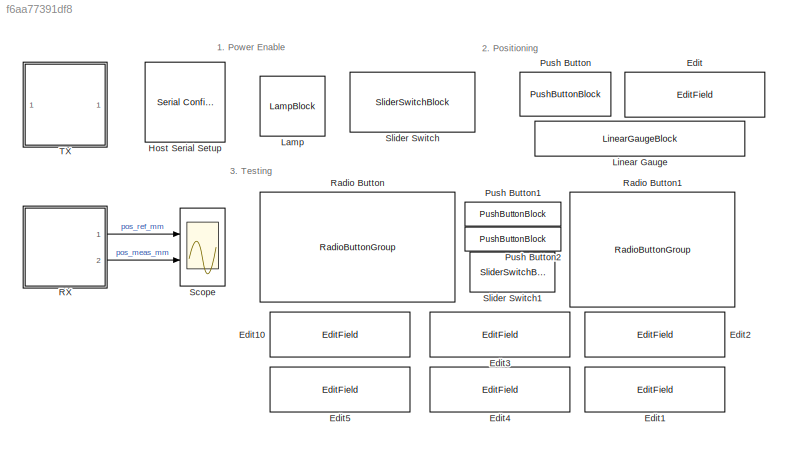
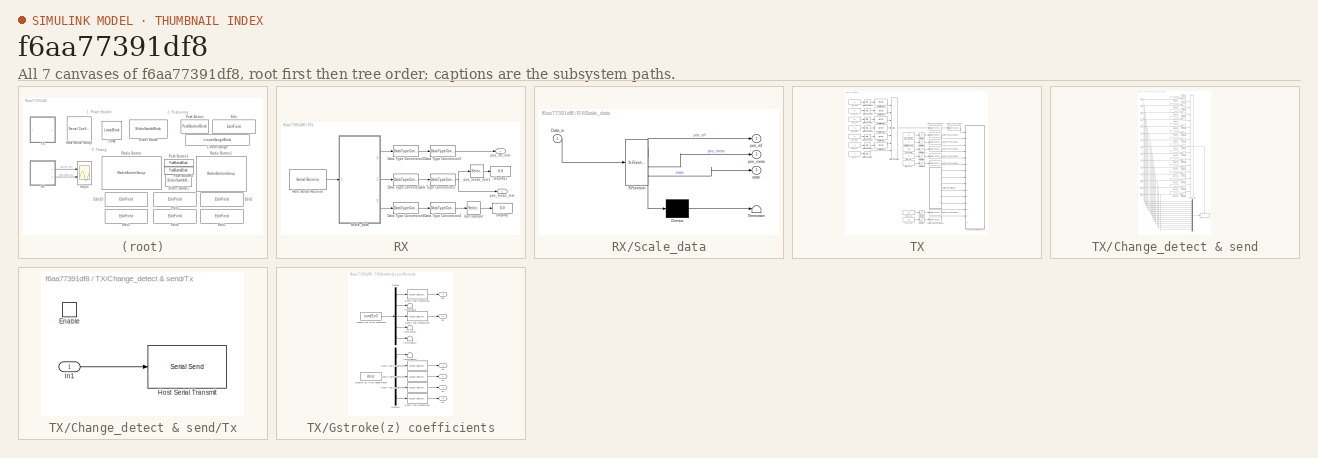
[diagram: thumbnail index - all 7 canvases of the model, root first then tree order]
MODEL slx_f6aa77391df8
KIND model
CONFIG AbsTol = auto
CONFIG EnableMultiTasking = off
CONFIG FixedStep = auto
CONFIG InitFcn = params_NVH;
CONFIG MaxStep = auto
CONFIG MinStep = auto
CONFIG RelTol = 1e-3
CONFIG SampleTimeConstraint = Unconstrained
CONFIG SolverName = VariableStepAuto
CONFIG StartTime = 0.0
CONFIG StopTime = Inf
BLOCK [EditField] Edit
  Alignment = Center
  LabelPosition = Bottom
  ShowInitialText = on
BLOCK [EditField] Edit1
  Alignment = Center
  LabelPosition = Bottom
  ShowInitialText = on
BLOCK [EditField] Edit10
  Alignment = Center
  LabelPosition = Bottom
  ShowInitialText = on
BLOCK [EditField] Edit2
  Alignment = Center
  LabelPosition = Bottom
  ShowInitialText = on
BLOCK [EditField] Edit3
  Alignment = Center
  LabelPosition = Bottom
  ShowInitialText = on
BLOCK [EditField] Edit4
  Alignment = Center
  LabelPosition = Bottom
  ShowInitialText = on
BLOCK [EditField] Edit5
  Alignment = Center
  LabelPosition = Bottom
  ShowInitialText = on
BLOCK [Reference] Host Serial Setup  REF=instrumentseriallib/Serial Configuration
  Ports = []
  Priority = -99
  SourceBlock = instrumentseriallib/Serial Configuration
  SourceProductBaseCode = OT,IC,MT
  SourceType = system.SerialConfiguration
BLOCK [LampBlock] Lamp
  LabelPosition = Hide
BLOCK [LinearGaugeBlock] Linear Gauge
  ScaleMax = 25
  ScaleMin = -25
  TickInterval = 5
BLOCK [PushButtonBlock] Push Button
  ButtonText = Position Enable
  OffValue = 0.000000
BLOCK [PushButtonBlock] Push Button1
  ButtonText = Test Start
  OffValue = 0.000000
BLOCK [PushButtonBlock] Push Button2
  ButtonText = Test Stop
  OffValue = 0.000000
BLOCK [SubSystem] RX
  Ports = [0, 2]
  RequestExecContextInheritance = off
BLOCK [DataTypeConversion] RX/Data Type Conversion1
  ConvertRealWorld = Stored Integer (SI)
  OutDataTypeStr = fixdt(1,16,15-ceil(log2(45)))
  RndMeth = Simplest
  SaturateOnIntegerOverflow = off
BLOCK [DataTypeConversion] RX/Data Type Conversion2
  OutDataTypeStr = double
  RndMeth = Simplest
  SaturateOnIntegerOverflow = off
BLOCK [DataTypeConversion] RX/Data Type Conversion3
  OutDataTypeStr = double
  RndMeth = Simplest
  SaturateOnIntegerOverflow = off
BLOCK [DataTypeConversion] RX/Data Type Conversion4
  OutDataTypeStr = double
  RndMeth = Simplest
  SaturateOnIntegerOverflow = off
BLOCK [DataTypeConversion] RX/Data Type Conversion5
  ConvertRealWorld = Stored Integer (SI)
  OutDataTypeStr = fixdt(1,16,15-ceil(log2(45)))
  RndMeth = Simplest
  SaturateOnIntegerOverflow = off
BLOCK [DataTypeConversion] RX/Data Type Conversion6
  ConvertRealWorld = Stored Integer (SI)
  OutDataTypeStr = fixdt(1,16,15-ceil(log2(45)))
  RndMeth = Simplest
  SaturateOnIntegerOverflow = off
BLOCK [Display] RX/Display
  Decimation = 1
  Ports = [1]
BLOCK [Display] RX/Display1
  Decimation = 1
  Ports = [1]
BLOCK [Reference] RX/Host Serial Receive  REF=instrumentseriallib/Serial Receive
  Ports = [0, 1]
  SourceBlock = instrumentseriallib/Serial Receive
  SourceProductBaseCode = OT,IC,MT
  SourceType = system.SerialReceive
BLOCK [SubSystem] RX/Scale_data
  ErrorFcn = Stateflow.Translate.translate
  PermitHierarchicalResolution = ExplicitOnly
  Ports = [1, 3]
  RequestExecContextInheritance = off
  SFBlockType = MATLAB Function
  TreatAsAtomicUnit = on
BLOCK [Demux] RX/Scale_data/ Demux 
  Outputs = 1
  Ports = [1, 1]
BLOCK [S-Function] RX/Scale_data/ SFunction 
  EnableBusSupport = on
  FunctionName = sf_sfun
  PortCounts = [1 4]
  Ports = [1, 4]
  SFcnIsStateOwnerBlock = off
  SFunctionDeploymentMode = off
  Tag = Stateflow S-Function 2
BLOCK [Terminator] RX/Scale_data/ Terminator 
BLOCK [Inport] RX/Scale_data/Data_in
BLOCK [Outport] RX/Scale_data/pos_meas
  Port = 2
BLOCK [Outport] RX/Scale_data/pos_ref
BLOCK [Outport] RX/Scale_data/state
  Port = 3
BLOCK [Selector] RX/last sample
  IndexOptions = Index vector (dialog),Starting index (dialog)
  Indices = 1000,1
  InputPortWidth = 3
  NumberOfDimensions = 2
  OutputSizes = 1,1
  Ports = [1, 1]
BLOCK [Outport] RX/pos_meas_mm
  Port = 2
BLOCK [Selector] RX/pos_meas_mm1
  IndexOptions = Index vector (dialog),Starting index (dialog)
  Indices = 1000,1
  InputPortWidth = 3
  NumberOfDimensions = 2
  OutputSizes = 1,1
  Ports = [1, 1]
BLOCK [Outport] RX/pos_ref_mm
BLOCK [RadioButtonGroup] Radio Button
  ButtonGroupName = Test Type
  LabelPosition = Hide
  SelectedLabel = Time history (Renault NVH profile)
BLOCK [RadioButtonGroup] Radio Button1
  ButtonGroupName = ISO 8608 random profile class
  LabelPosition = Hide
  SelectedLabel = C
BLOCK [Scope] Scope
  Floating = off
  NumInputPorts = 2
  Ports = [2]
  ScopeSpecificationString = Simulink.scopes.TimeScopeBlockCfg('CurrentConfiguration', extmgr.ConfigurationSet(extmgr.Configuration('Core','General UI',true,'FigureColor',[1 1 1]),extmgr.Configuration('Core','Source UI',true),extmgr.Configuration('Sources','WiredSimulink',true,'DataLogging',true,'DataLoggingSaveFormat','Structure'),extmgr.Configuration('Visuals','Time Domain',true,'InputProcessing','FrameProcessing','Serializ...<+1891ch>
BLOCK [SliderSwitchBlock] Slider Switch
  LabelPosition = Hide
BLOCK [SliderSwitchBlock] Slider Switch1
  LabelPosition = Hide
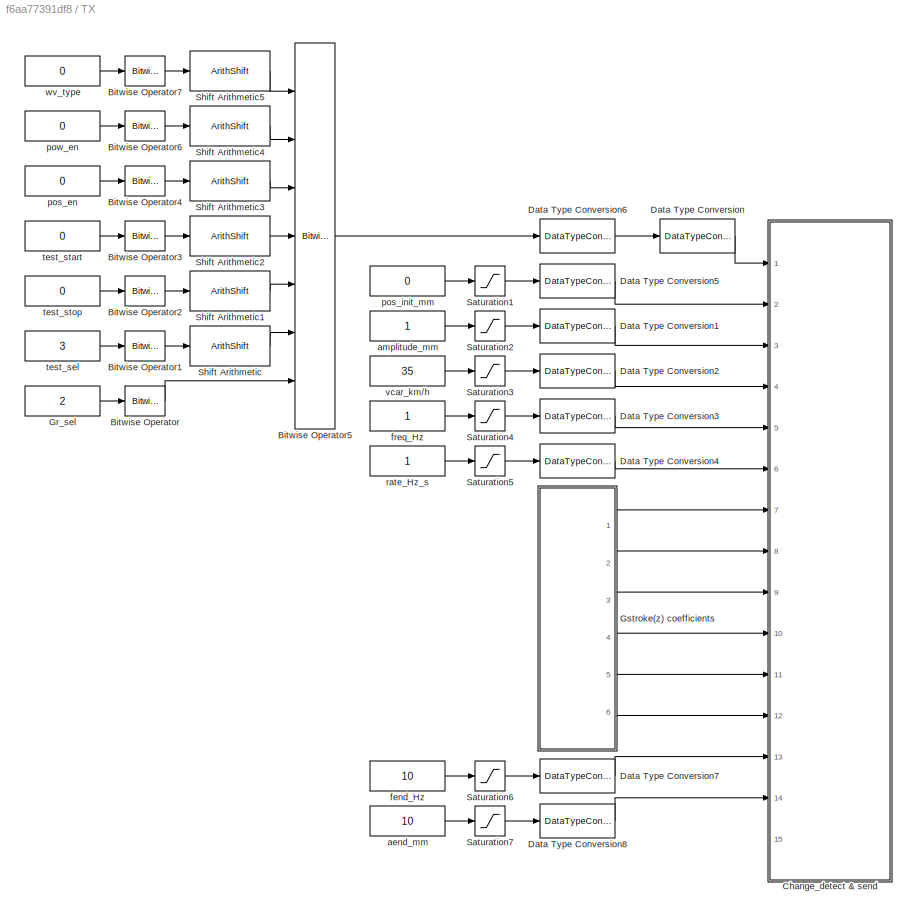
BLOCK [SubSystem] TX
  Ports = []
  RequestExecContextInheritance = off
BLOCK [Reference] TX/Bitwise Operator  REF=simulink/Logic and Bit
Operations/Bitwise
Operator
  Ports = [1, 1]
  SourceBlock = simulink/Logic and Bit\nOperations/Bitwise\nOperator
  SourceProductBaseCode = SL
  SourceType = Bitwise Operator
BLOCK [Reference] TX/Bitwise Operator1  REF=simulink/Logic and Bit
Operations/Bitwise
Operator
  Ports = [1, 1]
  SourceBlock = simulink/Logic and Bit\nOperations/Bitwise\nOperator
  SourceProductBaseCode = SL
  SourceType = Bitwise Operator
BLOCK [Reference] TX/Bitwise Operator2  REF=simulink/Logic and Bit
Operations/Bitwise
Operator
  Ports = [1, 1]
  SourceBlock = simulink/Logic and Bit\nOperations/Bitwise\nOperator
  SourceProductBaseCode = SL
  SourceType = Bitwise Operator
BLOCK [Reference] TX/Bitwise Operator3  REF=simulink/Logic and Bit
Operations/Bitwise
Operator
  Ports = [1, 1]
  SourceBlock = simulink/Logic and Bit\nOperations/Bitwise\nOperator
  SourceProductBaseCode = SL
  SourceType = Bitwise Operator
BLOCK [Reference] TX/Bitwise Operator4  REF=simulink/Logic and Bit
Operations/Bitwise
Operator
  Ports = [1, 1]
  SourceBlock = simulink/Logic and Bit\nOperations/Bitwise\nOperator
  SourceProductBaseCode = SL
  SourceType = Bitwise Operator
BLOCK [Reference] TX/Bitwise Operator5  REF=simulink/Logic and Bit
Operations/Bitwise
Operator
  Ports = [7, 1]
  SourceBlock = simulink/Logic and Bit\nOperations/Bitwise\nOperator
  SourceProductBaseCode = SL
  SourceType = Bitwise Operator
BLOCK [Reference] TX/Bitwise Operator6  REF=simulink/Logic and Bit
Operations/Bitwise
Operator
  Ports = [1, 1]
  SourceBlock = simulink/Logic and Bit\nOperations/Bitwise\nOperator
  SourceProductBaseCode = SL
  SourceType = Bitwise Operator
BLOCK [Reference] TX/Bitwise Operator7  REF=simulink/Logic and Bit
Operations/Bitwise
Operator
  Ports = [1, 1]
  SourceBlock = simulink/Logic and Bit\nOperations/Bitwise\nOperator
  SourceProductBaseCode = SL
  SourceType = Bitwise Operator
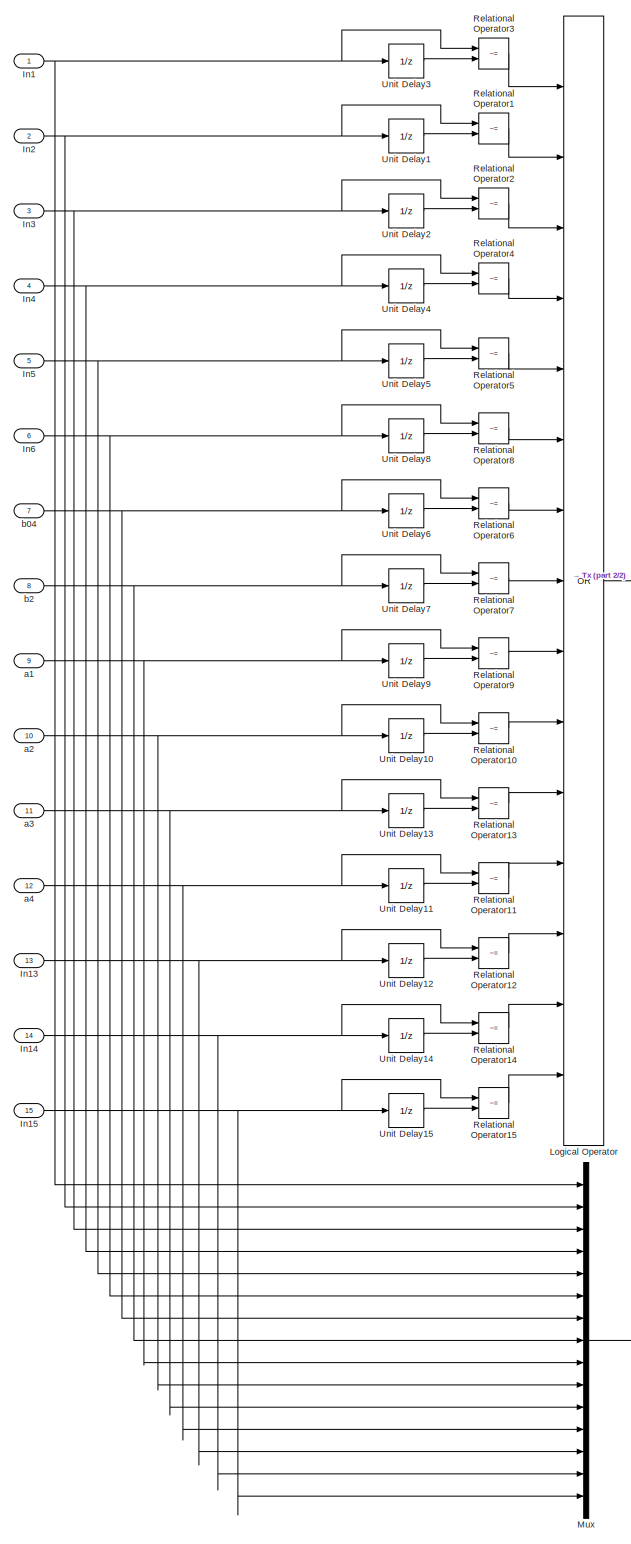
[diagram: TX/Change_detect & send - part 1/2, most of the canvas]
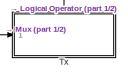
[diagram: TX/Change_detect & send - part 2/2, bottom right region]
BLOCK [SubSystem] TX/Change_detect & send
  Ports = [15]
  RequestExecContextInheritance = off
BLOCK [Inport] TX/Change_detect & send/In1
BLOCK [Inport] TX/Change_detect & send/In13
  Port = 13
BLOCK [Inport] TX/Change_detect & send/In14
  Port = 14
BLOCK [Inport] TX/Change_detect & send/In15
  Port = 15
BLOCK [Inport] TX/Change_detect & send/In2
  Port = 2
BLOCK [Inport] TX/Change_detect & send/In3
  Port = 3
BLOCK [Inport] TX/Change_detect & send/In4
  Port = 4
BLOCK [Inport] TX/Change_detect & send/In5
  Port = 5
BLOCK [Inport] TX/Change_detect & send/In6
  Port = 6
BLOCK [Logic] TX/Change_detect & send/Logical Operator
  AllPortsSameDT = off
  Inputs = 15
  Operator = OR
  OutDataTypeStr = boolean
  Ports = [15, 1]
BLOCK [Mux] TX/Change_detect & send/Mux
  DisplayOption = bar
  Inputs = 15
  Ports = [15, 1]
BLOCK [RelationalOperator] TX/Change_detect & send/Relational Operator1
  InputSameDT = off
  Operator = ~=
  OutDataTypeStr = boolean
  Ports = [2, 1]
BLOCK [RelationalOperator] TX/Change_detect & send/Relational Operator10
  InputSameDT = off
  Operator = ~=
  OutDataTypeStr = boolean
  Ports = [2, 1]
BLOCK [RelationalOperator] TX/Change_detect & send/Relational Operator11
  InputSameDT = off
  Operator = ~=
  OutDataTypeStr = boolean
  Ports = [2, 1]
BLOCK [RelationalOperator] TX/Change_detect & send/Relational Operator12
  InputSameDT = off
  Operator = ~=
  OutDataTypeStr = boolean
  Ports = [2, 1]
BLOCK [RelationalOperator] TX/Change_detect & send/Relational Operator13
  InputSameDT = off
  Operator = ~=
  OutDataTypeStr = boolean
  Ports = [2, 1]
BLOCK [RelationalOperator] TX/Change_detect & send/Relational Operator14
  InputSameDT = off
  Operator = ~=
  OutDataTypeStr = boolean
  Ports = [2, 1]
BLOCK [RelationalOperator] TX/Change_detect & send/Relational Operator15
  InputSameDT = off
  Operator = ~=
  OutDataTypeStr = boolean
  Ports = [2, 1]
BLOCK [RelationalOperator] TX/Change_detect & send/Relational Operator2
  InputSameDT = off
  Operator = ~=
  OutDataTypeStr = boolean
  Ports = [2, 1]
BLOCK [RelationalOperator] TX/Change_detect & send/Relational Operator3
  InputSameDT = off
  Operator = ~=
  OutDataTypeStr = boolean
  Ports = [2, 1]
BLOCK [RelationalOperator] TX/Change_detect & send/Relational Operator4
  InputSameDT = off
  Operator = ~=
  OutDataTypeStr = boolean
  Ports = [2, 1]
BLOCK [RelationalOperator] TX/Change_detect & send/Relational Operator5
  InputSameDT = off
  Operator = ~=
  OutDataTypeStr = boolean
  Ports = [2, 1]
BLOCK [RelationalOperator] TX/Change_detect & send/Relational Operator6
  InputSameDT = off
  Operator = ~=
  OutDataTypeStr = boolean
  Ports = [2, 1]
BLOCK [RelationalOperator] TX/Change_detect & send/Relational Operator7
  InputSameDT = off
  Operator = ~=
  OutDataTypeStr = boolean
  Ports = [2, 1]
BLOCK [RelationalOperator] TX/Change_detect & send/Relational Operator8
  InputSameDT = off
  Operator = ~=
  OutDataTypeStr = boolean
  Ports = [2, 1]
BLOCK [RelationalOperator] TX/Change_detect & send/Relational Operator9
  InputSameDT = off
  Operator = ~=
  OutDataTypeStr = boolean
  Ports = [2, 1]
BLOCK [SubSystem] TX/Change_detect & send/Tx
  Ports = [1, 0, 1]
  RequestExecContextInheritance = off
  TreatAsAtomicUnit = on
BLOCK [EnablePort] TX/Change_detect & send/Tx/Enable
  Ports = []
BLOCK [Reference] TX/Change_detect & send/Tx/Host Serial Transmit  REF=instrumentseriallib/Serial Send
  Ports = [1]
  SourceBlock = instrumentseriallib/Serial Send
  SourceProductBaseCode = OT,IC,MT
  SourceType = system.SerialSend
BLOCK [Inport] TX/Change_detect & send/Tx/In1
BLOCK [UnitDelay] TX/Change_detect & send/Unit Delay1
  HasFrameUpgradeWarning = on
  SampleTime = -1
BLOCK [UnitDelay] TX/Change_detect & send/Unit Delay10
  HasFrameUpgradeWarning = on
  SampleTime = -1
BLOCK [UnitDelay] TX/Change_detect & send/Unit Delay11
  HasFrameUpgradeWarning = on
  SampleTime = -1
BLOCK [UnitDelay] TX/Change_detect & send/Unit Delay12
  HasFrameUpgradeWarning = on
  SampleTime = -1
BLOCK [UnitDelay] TX/Change_detect & send/Unit Delay13
  HasFrameUpgradeWarning = on
  SampleTime = -1
BLOCK [UnitDelay] TX/Change_detect & send/Unit Delay14
  HasFrameUpgradeWarning = on
  SampleTime = -1
BLOCK [UnitDelay] TX/Change_detect & send/Unit Delay15
  HasFrameUpgradeWarning = on
  SampleTime = -1
BLOCK [UnitDelay] TX/Change_detect & send/Unit Delay2
  HasFrameUpgradeWarning = on
  SampleTime = -1
BLOCK [UnitDelay] TX/Change_detect & send/Unit Delay3
  HasFrameUpgradeWarning = on
  SampleTime = -1
BLOCK [UnitDelay] TX/Change_detect & send/Unit Delay4
  HasFrameUpgradeWarning = on
  SampleTime = -1
BLOCK [UnitDelay] TX/Change_detect & send/Unit Delay5
  HasFrameUpgradeWarning = on
  SampleTime = -1
BLOCK [UnitDelay] TX/Change_detect & send/Unit Delay6
  HasFrameUpgradeWarning = on
  SampleTime = -1
BLOCK [UnitDelay] TX/Change_detect & send/Unit Delay7
  HasFrameUpgradeWarning = on
  SampleTime = -1
BLOCK [UnitDelay] TX/Change_detect & send/Unit Delay8
  HasFrameUpgradeWarning = on
  SampleTime = -1
BLOCK [UnitDelay] TX/Change_detect & send/Unit Delay9
  HasFrameUpgradeWarning = on
  SampleTime = -1
BLOCK [Inport] TX/Change_detect & send/a1
  Port = 9
BLOCK [Inport] TX/Change_detect & send/a2
  Port = 10
BLOCK [Inport] TX/Change_detect & send/a3
  Port = 11
BLOCK [Inport] TX/Change_detect & send/a4
  Port = 12
BLOCK [Inport] TX/Change_detect & send/b04
  Port = 7
BLOCK [Inport] TX/Change_detect & send/b2
  Port = 8
BLOCK [DataTypeConversion] TX/Data Type Conversion
  ConvertRealWorld = Stored Integer (SI)
  OutDataTypeStr = single
  RndMeth = Floor
  SaturateOnIntegerOverflow = off
BLOCK [DataTypeConversion] TX/Data Type Conversion1
  OutDataTypeStr = single
  RndMeth = Simplest
  SaturateOnIntegerOverflow = off
BLOCK [DataTypeConversion] TX/Data Type Conversion2
  OutDataTypeStr = single
  RndMeth = Simplest
  SaturateOnIntegerOverflow = off
BLOCK [DataTypeConversion] TX/Data Type Conversion3
  OutDataTypeStr = single
  RndMeth = Simplest
  SaturateOnIntegerOverflow = off
BLOCK [DataTypeConversion] TX/Data Type Conversion4
  OutDataTypeStr = single
  RndMeth = Simplest
  SaturateOnIntegerOverflow = off
BLOCK [DataTypeConversion] TX/Data Type Conversion5
  OutDataTypeStr = single
  RndMeth = Simplest
  SaturateOnIntegerOverflow = off
BLOCK [DataTypeConversion] TX/Data Type Conversion6
  OutDataTypeStr = uint32
  RndMeth = Simplest
  SaturateOnIntegerOverflow = off
BLOCK [DataTypeConversion] TX/Data Type Conversion7
  OutDataTypeStr = single
  RndMeth = Simplest
  SaturateOnIntegerOverflow = off
BLOCK [DataTypeConversion] TX/Data Type Conversion8
  OutDataTypeStr = single
  RndMeth = Simplest
  SaturateOnIntegerOverflow = off
BLOCK [Constant] TX/Gr_sel
  OutDataTypeStr = uint32
  SampleTime = 0.01
  Value = 2
  VectorParams1D = off
BLOCK [SubSystem] TX/Gstroke(z) coefficients
  NameLocation = left
  Ports = [0, 6]
  RequestExecContextInheritance = off
BLOCK [DataTypeConversion] TX/Gstroke(z) coefficients/Data Type Conversion1
  OutDataTypeStr = single
  RndMeth = Simplest
  SaturateOnIntegerOverflow = off
BLOCK [DataTypeConversion] TX/Gstroke(z) coefficients/Data Type Conversion2
  OutDataTypeStr = single
  RndMeth = Simplest
  SaturateOnIntegerOverflow = off
BLOCK [DataTypeConversion] TX/Gstroke(z) coefficients/Data Type Conversion3
  OutDataTypeStr = single
  RndMeth = Simplest
  SaturateOnIntegerOverflow = off
BLOCK [DataTypeConversion] TX/Gstroke(z) coefficients/Data Type Conversion4
  OutDataTypeStr = single
  RndMeth = Simplest
  SaturateOnIntegerOverflow = off
BLOCK [DataTypeConversion] TX/Gstroke(z) coefficients/Data Type Conversion5
  OutDataTypeStr = single
  RndMeth = Simplest
  SaturateOnIntegerOverflow = off
BLOCK [DataTypeConversion] TX/Gstroke(z) coefficients/Data Type Conversion6
  OutDataTypeStr = single
  RndMeth = Simplest
  SaturateOnIntegerOverflow = off
BLOCK [Demux] TX/Gstroke(z) coefficients/Demux
  Outputs = 5
  Ports = [1, 5]
BLOCK [Demux] TX/Gstroke(z) coefficients/Demux1
  Outputs = 5
  Ports = [1, 5]
BLOCK [Constant] TX/Gstroke(z) coefficients/Quarter car filter denominator
  OutDataTypeStr = double
  SampleTime = 0.01
  Value = denz
  VectorParams1D = off
BLOCK [Constant] TX/Gstroke(z) coefficients/Quarter car filter numerator
  OutDataTypeStr = double
  SampleTime = 0.01
  Value = numz*1e3
  VectorParams1D = off
BLOCK [Terminator] TX/Gstroke(z) coefficients/Terminator
BLOCK [Terminator] TX/Gstroke(z) coefficients/Terminator1
BLOCK [Terminator] TX/Gstroke(z) coefficients/Terminator2
BLOCK [Terminator] TX/Gstroke(z) coefficients/Terminator3
BLOCK [Outport] TX/Gstroke(z) coefficients/a1
  Port = 3
BLOCK [Outport] TX/Gstroke(z) coefficients/a2
  Port = 4
BLOCK [Outport] TX/Gstroke(z) coefficients/a3
  Port = 5
BLOCK [Outport] TX/Gstroke(z) coefficients/a4
  Port = 6
BLOCK [Outport] TX/Gstroke(z) coefficients/b04
BLOCK [Outport] TX/Gstroke(z) coefficients/b2
  Port = 2
BLOCK [Saturate] TX/Saturation1
  LowerLimit = -20
  UpperLimit = 20
BLOCK [Saturate] TX/Saturation2
  LowerLimit = 0
  UpperLimit = 20
BLOCK [Saturate] TX/Saturation3
  LowerLimit = 10
  UpperLimit = 200
BLOCK [Saturate] TX/Saturation4
  LowerLimit = 0.1
  UpperLimit = 100
BLOCK [Saturate] TX/Saturation5
  LowerLimit = 0.1
  UpperLimit = 10
BLOCK [Saturate] TX/Saturation6
  LowerLimit = 0.1
  UpperLimit = 100
BLOCK [Saturate] TX/Saturation7
  LowerLimit = 0
  UpperLimit = 20
BLOCK [ArithShift] TX/Shift Arithmetic
  BitShiftNumber = -2
  InputPortMap = u0
  Ports = [1, 1]
BLOCK [ArithShift] TX/Shift Arithmetic1
  BitShiftNumber = -4
  InputPortMap = u0
  Ports = [1, 1]
BLOCK [ArithShift] TX/Shift Arithmetic2
  BitShiftNumber = -5
  InputPortMap = u0
  Ports = [1, 1]
BLOCK [ArithShift] TX/Shift Arithmetic3
  BitShiftNumber = -6
  InputPortMap = u0
  Ports = [1, 1]
BLOCK [ArithShift] TX/Shift Arithmetic4
  BitShiftNumber = -7
  InputPortMap = u0
  Ports = [1, 1]
BLOCK [ArithShift] TX/Shift Arithmetic5
  BitShiftNumber = -8
  InputPortMap = u0
  Ports = [1, 1]
BLOCK [Constant] TX/aend_mm
  OutDataTypeStr = single
  SampleTime = 0.01
  Value = 10
  VectorParams1D = off
BLOCK [Constant] TX/amplitude_mm
  OutDataTypeStr = single
  SampleTime = 0.01
  VectorParams1D = off
BLOCK [Constant] TX/fend_Hz
  OutDataTypeStr = single
  SampleTime = 0.01
  Value = 10
  VectorParams1D = off
BLOCK [Constant] TX/freq_Hz
  OutDataTypeStr = single
  SampleTime = 0.01
  VectorParams1D = off
BLOCK [Constant] TX/pos_en
  OutDataTypeStr = uint32
  SampleTime = 0.01
  Value = 0
  VectorParams1D = off
BLOCK [Constant] TX/pos_init_mm
  OutDataTypeStr = single
  SampleTime = 0.01
  Value = 0
  VectorParams1D = off
BLOCK [Constant] TX/pow_en
  OutDataTypeStr = uint32
  SampleTime = 0.01
  Value = 0
  VectorParams1D = off
BLOCK [Constant] TX/rate_Hz_s
  OutDataTypeStr = single
  SampleTime = 0.01
  VectorParams1D = off
BLOCK [Constant] TX/test_sel
  OutDataTypeStr = uint32
  SampleTime = 0.01
  Value = 3
  VectorParams1D = off
BLOCK [Constant] TX/test_start
  OutDataTypeStr = uint32
  SampleTime = 0.01
  Value = 0
  VectorParams1D = off
BLOCK [Constant] TX/test_stop
  OutDataTypeStr = uint32
  SampleTime = 0.01
  Value = 0
  VectorParams1D = off
BLOCK [Constant] TX/vcar_km//h
  OutDataTypeStr = single
  SampleTime = 0.01
  Value = 35
  VectorParams1D = off
BLOCK [Constant] TX/wv_type
  OutDataTypeStr = uint32
  SampleTime = 0.01
  Value = 0
  VectorParams1D = off
ANNOTATION (root): 1. Power Enable
ANNOTATION (root): 2. Positioning
ANNOTATION (root): 3. Testing
LINE RX/Data Type Conversion1:1 -> RX/Data Type Conversion3:1
LINE RX/Data Type Conversion2:1 -> RX/pos_ref_mm:1
NET RX/Data Type Conversion3:1 -> RX/pos_meas_mm1:1, RX/pos_meas_mm:1
LINE RX/Data Type Conversion4:1 -> RX/last sample:1
LINE RX/Data Type Conversion5:1 -> RX/Data Type Conversion2:1
LINE RX/Data Type Conversion6:1 -> RX/Data Type Conversion4:1
LINE RX/Host Serial Receive:1 -> RX/Scale_data:1
LINE RX/Scale_data:1 -> RX/Data Type Conversion5:1
LINE RX/Scale_data:2 -> RX/Data Type Conversion1:1
LINE RX/Scale_data:3 -> RX/Data Type Conversion6:1
LINE RX/last sample:1 -> RX/Display:1
LINE RX/pos_meas_mm1:1 -> RX/Display1:1
LINE RX:1 -> Scope:1
LINE RX:2 -> Scope:2
LINE TX/Bitwise Operator1:1 -> TX/Shift Arithmetic:1
LINE TX/Bitwise Operator2:1 -> TX/Shift Arithmetic1:1
LINE TX/Bitwise Operator3:1 -> TX/Shift Arithmetic2:1
LINE TX/Bitwise Operator4:1 -> TX/Shift Arithmetic3:1
LINE TX/Bitwise Operator5:1 -> TX/Data Type Conversion6:1
LINE TX/Bitwise Operator6:1 -> TX/Shift Arithmetic4:1
LINE TX/Bitwise Operator7:1 -> TX/Shift Arithmetic5:1
LINE TX/Bitwise Operator:1 -> TX/Bitwise Operator5:7
NET TX/Change_detect & send/In13:1 -> TX/Change_detect & send/Mux:13, TX/Change_detect & send/Relational Operator12:1, TX/Change_detect & send/Unit Delay12:1
NET TX/Change_detect & send/In14:1 -> TX/Change_detect & send/Mux:14, TX/Change_detect & send/Relational Operator14:1, TX/Change_detect & send/Unit Delay14:1
NET TX/Change_detect & send/In15:1 -> TX/Change_detect & send/Mux:15, TX/Change_detect & send/Relational Operator15:1, TX/Change_detect & send/Unit Delay15:1
NET TX/Change_detect & send/In1:1 -> TX/Change_detect & send/Mux:1, TX/Change_detect & send/Relational Operator3:1, TX/Change_detect & send/Unit Delay3:1
NET TX/Change_detect & send/In2:1 -> TX/Change_detect & send/Mux:2, TX/Change_detect & send/Relational Operator1:1, TX/Change_detect & send/Unit Delay1:1
NET TX/Change_detect & send/In3:1 -> TX/Change_detect & send/Mux:3, TX/Change_detect & send/Relational Operator2:1, TX/Change_detect & send/Unit Delay2:1
NET TX/Change_detect & send/In4:1 -> TX/Change_detect & send/Mux:4, TX/Change_detect & send/Relational Operator4:1, TX/Change_detect & send/Unit Delay4:1
NET TX/Change_detect & send/In5:1 -> TX/Change_detect & send/Mux:5, TX/Change_detect & send/Relational Operator5:1, TX/Change_detect & send/Unit Delay5:1
NET TX/Change_detect & send/In6:1 -> TX/Change_detect & send/Mux:6, TX/Change_detect & send/Relational Operator8:1, TX/Change_detect & send/Unit Delay8:1
LINE TX/Change_detect & send/Logical Operator:1 -> TX/Change_detect & send/Tx:enable
LINE TX/Change_detect & send/Mux:1 -> TX/Change_detect & send/Tx:1
LINE TX/Change_detect & send/Relational Operator10:1 -> TX/Change_detect & send/Logical Operator:10
LINE TX/Change_detect & send/Relational Operator11:1 -> TX/Change_detect & send/Logical Operator:12
LINE TX/Change_detect & send/Relational Operator12:1 -> TX/Change_detect & send/Logical Operator:13
LINE TX/Change_detect & send/Relational Operator13:1 -> TX/Change_detect & send/Logical Operator:11
LINE TX/Change_detect & send/Relational Operator14:1 -> TX/Change_detect & send/Logical Operator:14
LINE TX/Change_detect & send/Relational Operator15:1 -> TX/Change_detect & send/Logical Operator:15
LINE TX/Change_detect & send/Relational Operator1:1 -> TX/Change_detect & send/Logical Operator:2
LINE TX/Change_detect & send/Relational Operator2:1 -> TX/Change_detect & send/Logical Operator:3
LINE TX/Change_detect & send/Relational Operator3:1 -> TX/Change_detect & send/Logical Operator:1
LINE TX/Change_detect & send/Relational Operator4:1 -> TX/Change_detect & send/Logical Operator:4
LINE TX/Change_detect & send/Relational Operator5:1 -> TX/Change_detect & send/Logical Operator:5
LINE TX/Change_detect & send/Relational Operator6:1 -> TX/Change_detect & send/Logical Operator:7
LINE TX/Change_detect & send/Relational Operator7:1 -> TX/Change_detect & send/Logical Operator:8
LINE TX/Change_detect & send/Relational Operator8:1 -> TX/Change_detect & send/Logical Operator:6
LINE TX/Change_detect & send/Relational Operator9:1 -> TX/Change_detect & send/Logical Operator:9
LINE TX/Change_detect & send/Tx/In1:1 -> TX/Change_detect & send/Tx/Host Serial Transmit:1
LINE TX/Change_detect & send/Unit Delay10:1 -> TX/Change_detect & send/Relational Operator10:2
LINE TX/Change_detect & send/Unit Delay11:1 -> TX/Change_detect & send/Relational Operator11:2
LINE TX/Change_detect & send/Unit Delay12:1 -> TX/Change_detect & send/Relational Operator12:2
LINE TX/Change_detect & send/Unit Delay13:1 -> TX/Change_detect & send/Relational Operator13:2
LINE TX/Change_detect & send/Unit Delay14:1 -> TX/Change_detect & send/Relational Operator14:2
LINE TX/Change_detect & send/Unit Delay15:1 -> TX/Change_detect & send/Relational Operator15:2
LINE TX/Change_detect & send/Unit Delay1:1 -> TX/Change_detect & send/Relational Operator1:2
LINE TX/Change_detect & send/Unit Delay2:1 -> TX/Change_detect & send/Relational Operator2:2
LINE TX/Change_detect & send/Unit Delay3:1 -> TX/Change_detect & send/Relational Operator3:2
LINE TX/Change_detect & send/Unit Delay4:1 -> TX/Change_detect & send/Relational Operator4:2
LINE TX/Change_detect & send/Unit Delay5:1 -> TX/Change_detect & send/Relational Operator5:2
LINE TX/Change_detect & send/Unit Delay6:1 -> TX/Change_detect & send/Relational Operator6:2
LINE TX/Change_detect & send/Unit Delay7:1 -> TX/Change_detect & send/Relational Operator7:2
LINE TX/Change_detect & send/Unit Delay8:1 -> TX/Change_detect & send/Relational Operator8:2
LINE TX/Change_detect & send/Unit Delay9:1 -> TX/Change_detect & send/Relational Operator9:2
NET TX/Change_detect & send/a1:1 -> TX/Change_detect & send/Mux:9, TX/Change_detect & send/Relational Operator9:1, TX/Change_detect & send/Unit Delay9:1
NET TX/Change_detect & send/a2:1 -> TX/Change_detect & send/Mux:10, TX/Change_detect & send/Relational Operator10:1, TX/Change_detect & send/Unit Delay10:1
NET TX/Change_detect & send/a3:1 -> TX/Change_detect & send/Mux:11, TX/Change_detect & send/Relational Operator13:1, TX/Change_detect & send/Unit Delay13:1
NET TX/Change_detect & send/a4:1 -> TX/Change_detect & send/Mux:12, TX/Change_detect & send/Relational Operator11:1, TX/Change_detect & send/Unit Delay11:1
NET TX/Change_detect & send/b04:1 -> TX/Change_detect & send/Mux:7, TX/Change_detect & send/Relational Operator6:1, TX/Change_detect & send/Unit Delay6:1
NET TX/Change_detect & send/b2:1 -> TX/Change_detect & send/Mux:8, TX/Change_detect & send/Relational Operator7:1, TX/Change_detect & send/Unit Delay7:1
LINE TX/Data Type Conversion1:1 -> TX/Change_detect & send:3
LINE TX/Data Type Conversion2:1 -> TX/Change_detect & send:4
LINE TX/Data Type Conversion3:1 -> TX/Change_detect & send:5
LINE TX/Data Type Conversion4:1 -> TX/Change_detect & send:6
LINE TX/Data Type Conversion5:1 -> TX/Change_detect & send:2
LINE TX/Data Type Conversion6:1 -> TX/Data Type Conversion:1
LINE TX/Data Type Conversion7:1 -> TX/Change_detect & send:13
LINE TX/Data Type Conversion8:1 -> TX/Change_detect & send:14
LINE TX/Data Type Conversion:1 -> TX/Change_detect & send:1
LINE TX/Gr_sel:1 -> TX/Bitwise Operator:1
LINE TX/Gstroke(z) coefficients/Data Type Conversion1:1 -> TX/Gstroke(z) coefficients/b2:1
LINE TX/Gstroke(z) coefficients/Data Type Conversion2:1 -> TX/Gstroke(z) coefficients/a1:1
LINE TX/Gstroke(z) coefficients/Data Type Conversion3:1 -> TX/Gstroke(z) coefficients/a2:1
LINE TX/Gstroke(z) coefficients/Data Type Conversion4:1 -> TX/Gstroke(z) coefficients/a3:1
LINE TX/Gstroke(z) coefficients/Data Type Conversion5:1 -> TX/Gstroke(z) coefficients/b04:1
LINE TX/Gstroke(z) coefficients/Data Type Conversion6:1 -> TX/Gstroke(z) coefficients/a4:1
LINE TX/Gstroke(z) coefficients/Demux1:1 -> TX/Gstroke(z) coefficients/Terminator3:1
LINE TX/Gstroke(z) coefficients/Demux1:2 -> TX/Gstroke(z) coefficients/Data Type Conversion2:1
LINE TX/Gstroke(z) coefficients/Demux1:3 -> TX/Gstroke(z) coefficients/Data Type Conversion3:1
LINE TX/Gstroke(z) coefficients/Demux1:4 -> TX/Gstroke(z) coefficients/Data Type Conversion4:1
LINE TX/Gstroke(z) coefficients/Demux1:5 -> TX/Gstroke(z) coefficients/Data Type Conversion6:1
LINE TX/Gstroke(z) coefficients/Demux:1 -> TX/Gstroke(z) coefficients/Data Type Conversion5:1
LINE TX/Gstroke(z) coefficients/Demux:2 -> TX/Gstroke(z) coefficients/Terminator:1
LINE TX/Gstroke(z) coefficients/Demux:3 -> TX/Gstroke(z) coefficients/Data Type Conversion1:1
LINE TX/Gstroke(z) coefficients/Demux:4 -> TX/Gstroke(z) coefficients/Terminator1:1
LINE TX/Gstroke(z) coefficients/Demux:5 -> TX/Gstroke(z) coefficients/Terminator2:1
LINE TX/Gstroke(z) coefficients/Quarter car filter denominator:1 -> TX/Gstroke(z) coefficients/Demux1:1
LINE TX/Gstroke(z) coefficients/Quarter car filter numerator:1 -> TX/Gstroke(z) coefficients/Demux:1
LINE TX/Gstroke(z) coefficients:1 -> TX/Change_detect & send:7
LINE TX/Gstroke(z) coefficients:2 -> TX/Change_detect & send:8
LINE TX/Gstroke(z) coefficients:3 -> TX/Change_detect & send:9
LINE TX/Gstroke(z) coefficients:4 -> TX/Change_detect & send:10
LINE TX/Gstroke(z) coefficients:5 -> TX/Change_detect & send:11
LINE TX/Gstroke(z) coefficients:6 -> TX/Change_detect & send:12
LINE TX/Saturation1:1 -> TX/Data Type Conversion5:1
LINE TX/Saturation2:1 -> TX/Data Type Conversion1:1
LINE TX/Saturation3:1 -> TX/Data Type Conversion2:1
LINE TX/Saturation4:1 -> TX/Data Type Conversion3:1
LINE TX/Saturation5:1 -> TX/Data Type Conversion4:1
LINE TX/Saturation6:1 -> TX/Data Type Conversion7:1
LINE TX/Saturation7:1 -> TX/Data Type Conversion8:1
LINE TX/Shift Arithmetic1:1 -> TX/Bitwise Operator5:5
LINE TX/Shift Arithmetic2:1 -> TX/Bitwise Operator5:4
LINE TX/Shift Arithmetic3:1 -> TX/Bitwise Operator5:3
LINE TX/Shift Arithmetic4:1 -> TX/Bitwise Operator5:2
LINE TX/Shift Arithmetic5:1 -> TX/Bitwise Operator5:1
LINE TX/Shift Arithmetic:1 -> TX/Bitwise Operator5:6
LINE TX/aend_mm:1 -> TX/Saturation7:1
LINE TX/amplitude_mm:1 -> TX/Saturation2:1
LINE TX/fend_Hz:1 -> TX/Saturation6:1
LINE TX/freq_Hz:1 -> TX/Saturation4:1
LINE TX/pos_en:1 -> TX/Bitwise Operator4:1
LINE TX/pos_init_mm:1 -> TX/Saturation1:1
LINE TX/pow_en:1 -> TX/Bitwise Operator6:1
LINE TX/rate_Hz_s:1 -> TX/Saturation5:1
LINE TX/test_sel:1 -> TX/Bitwise Operator1:1
LINE TX/test_start:1 -> TX/Bitwise Operator3:1
LINE TX/test_stop:1 -> TX/Bitwise Operator2:1
LINE TX/vcar_km//h:1 -> TX/Saturation3:1
LINE TX/wv_type:1 -> TX/Bitwise Operator7:1
note: NET lines group one-source signal fan-out (src -> all destinations, sorted); 1:1 wires keep LINE
CHART RX/Scale_data states=1 transitions=1
  STATE_LABEL 'eML_blk_kernel()'
  STATE_LABEL 'SCRIPT:\nfunction [pos_ref,pos_meas,state]  = unBuf(Data_in)\npos_ref = Data_in(:, 1);\npos_meas = Data_in(:, 2);\nstate = Data_in(:, 3);\nend'
CHART  states=0 transitions=0
